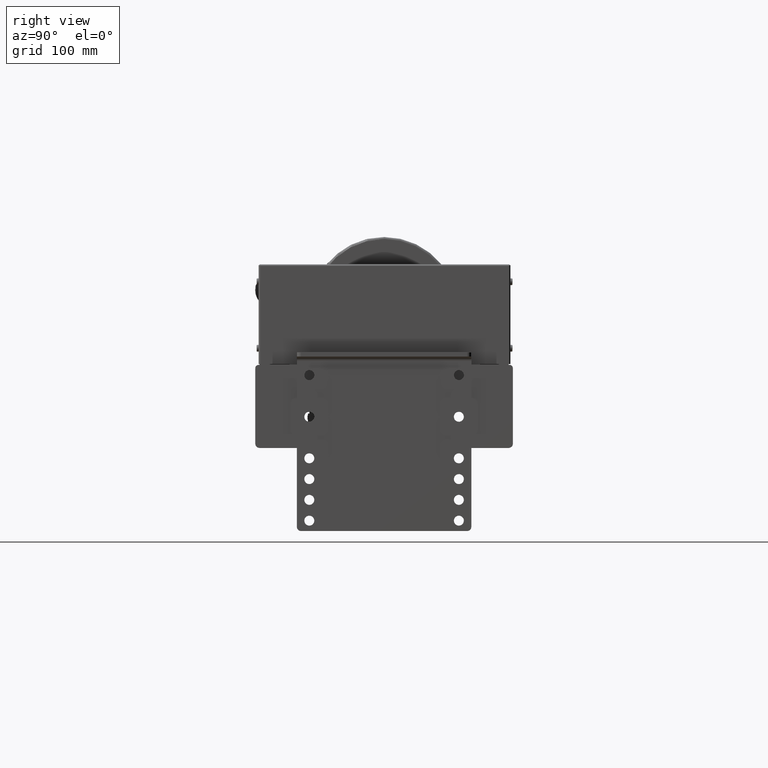
[diagram: clean part render]
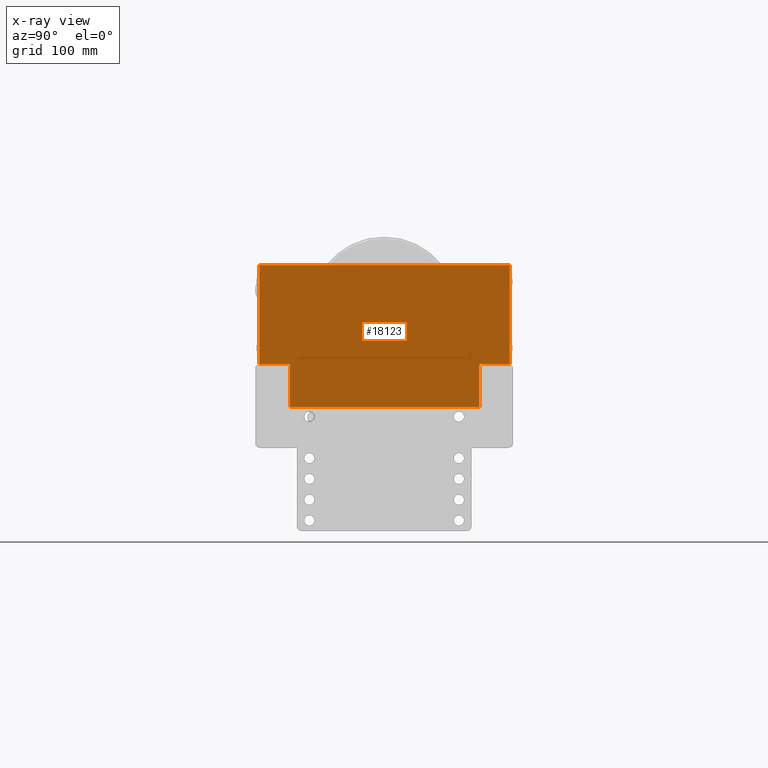
[diagram: x-ray — body ghosted, one internal face saturated and labeled with its STEP entity id]
A machine part, right view, then the same camera in x-ray: the body is ghosted and one INTERNAL B-rep face — a face not visible from any outside direction — is saturated and labeled: STEP entity #18123.
In plain terms, the highlighted planar face has unit normal (1, 0, -0).
Its self-contained STEP definition (entity closure, byte-faithful):
#16853=CARTESIAN_POINT('',(-54.0,-35.500000000000000,0.500000000000000));
#16854=VERTEX_POINT('',#16853);
#16861=CARTESIAN_POINT('',(-56.0,-33.500000000000000,0.500000000000000));
#16862=VERTEX_POINT('',#16861);
#16863=CARTESIAN_POINT('',(-56.0,-35.500000000000000,0.500000000000000));
#16864=DIRECTION('',(0.0,0.0,1.000000000000000));
#16865=DIRECTION('',(0.707106781186548,0.707106781186548,0.0));
#16866=AXIS2_PLACEMENT_3D('',#16863,#16864,#16865);
#16867=CIRCLE('',#16866,2.000000000000000);
#16868=EDGE_CURVE('',#16854,#16862,#16867,.T.);
#16918=CARTESIAN_POINT('',(-54.0,-85.499999999999943,0.500000000000000));
#16919=VERTEX_POINT('',#16918);
#16926=CARTESIAN_POINT('',(-54.0,-85.499999999999943,0.500000000000000));
#16927=DIRECTION('',(0.0,1.0,0.0));
#16928=VECTOR('',#16927,49.999999999999943);
#16929=LINE('',#16926,#16928);
#16930=EDGE_CURVE('',#16919,#16854,#16929,.T.);
#16983=CARTESIAN_POINT('',(-90.500000000000000,-33.500000000000000,0.500000000000000));
#16984=VERTEX_POINT('',#16983);
#16985=CARTESIAN_POINT('',(-56.0,-33.500000000000000,0.500000000000000));
#16986=DIRECTION('',(-1.0,0.0,0.0));
#16987=VECTOR('',#16986,34.500000000000000);
#16988=LINE('',#16985,#16987);
#16989=EDGE_CURVE('',#16862,#16984,#16988,.T.);
#17158=CARTESIAN_POINT('',(-90.500000000000000,85.499999999999886,0.500000000000000));
#17159=VERTEX_POINT('',#17158);
#17286=CARTESIAN_POINT('',(210.499999999999890,85.499999999999886,0.500000000000000));
#17287=VERTEX_POINT('',#17286);
#17437=CARTESIAN_POINT('',(210.500000000000000,-33.500000000000114,0.500000000000000));
#17438=VERTEX_POINT('',#17437);
#17445=CARTESIAN_POINT('',(176.0,-33.500000000000000,0.500000000000000));
#17446=VERTEX_POINT('',#17445);
#17447=CARTESIAN_POINT('',(210.500000000000000,-33.500000000000114,0.500000000000000));
#17448=DIRECTION('',(-1.0,0.0,0.0));
#17449=VECTOR('',#17448,34.500000000000000);
#17450=LINE('',#17447,#17449);
#17451=EDGE_CURVE('',#17438,#17446,#17450,.T.);
#17495=CARTESIAN_POINT('',(174.0,-35.500000000000114,0.500000000000000));
#17496=VERTEX_POINT('',#17495);
#17497=CARTESIAN_POINT('',(176.0,-35.500000000000114,0.500000000000000));
#17498=DIRECTION('',(0.0,0.0,1.000000000000000));
#17499=DIRECTION('',(-0.707106781186548,0.707106781186548,0.0));
#17500=AXIS2_PLACEMENT_3D('',#17497,#17498,#17499);
#17501=CIRCLE('',#17500,2.000000000000000);
#17502=EDGE_CURVE('',#17446,#17496,#17501,.T.);
#17592=CARTESIAN_POINT('',(174.0,-85.500000000000114,0.500000000000000));
#17593=VERTEX_POINT('',#17592);
#17600=CARTESIAN_POINT('',(174.0,-85.500000000000114,0.500000000000000));
#17601=DIRECTION('',(-1.0,0.0,0.0));
#17602=VECTOR('',#17601,228.0);
#17603=LINE('',#17600,#17602);
#17604=EDGE_CURVE('',#17593,#16919,#17603,.T.);
#17948=CARTESIAN_POINT('',(-90.500000000000000,85.499999999999886,0.500000000000000));
#17949=DIRECTION('',(1.0,0.0,0.0));
#17950=VECTOR('',#17949,300.999999999999890);
#17951=LINE('',#17948,#17950);
#17952=EDGE_CURVE('',#17159,#17287,#17951,.T.);
#18013=CARTESIAN_POINT('',(210.499999999999890,85.499999999999886,0.500000000000000));
#18014=DIRECTION('',(0.0,-1.0,0.0));
#18015=VECTOR('',#18014,119.0);
#18016=LINE('',#18013,#18015);
#18017=EDGE_CURVE('',#17287,#17438,#18016,.T.);
#18050=CARTESIAN_POINT('',(-90.500000000000000,-33.500000000000000,0.500000000000000));
#18051=DIRECTION('',(0.0,1.0,0.0));
#18052=VECTOR('',#18051,118.999999999999890);
#18053=LINE('',#18050,#18052);
#18054=EDGE_CURVE('',#16984,#17159,#18053,.T.);
#18092=CARTESIAN_POINT('',(174.0,-35.500000000000114,0.500000000000000));
#18093=DIRECTION('',(0.0,-1.0,0.0));
#18094=VECTOR('',#18093,50.0);
#18095=LINE('',#18092,#18094);
#18096=EDGE_CURVE('',#17496,#17593,#18095,.T.);
#18106=CARTESIAN_POINT('',(60.0,4.021186440677894,0.500000000000000));
#18107=DIRECTION('',(0.0,0.0,1.0));
#18108=DIRECTION('',(1.0,0.0,0.0));
#18109=AXIS2_PLACEMENT_3D('',#18106,#18107,#18108);
#18110=PLANE('',#18109);
#18111=ORIENTED_EDGE('',*,*,#18017,.F.);
#18112=ORIENTED_EDGE('',*,*,#17952,.F.);
#18113=ORIENTED_EDGE('',*,*,#18054,.F.);
#18114=ORIENTED_EDGE('',*,*,#16989,.F.);
#18115=ORIENTED_EDGE('',*,*,#16868,.F.);
#18116=ORIENTED_EDGE('',*,*,#16930,.F.);
#18117=ORIENTED_EDGE('',*,*,#17604,.F.);
#18118=ORIENTED_EDGE('',*,*,#18096,.F.);
#18119=ORIENTED_EDGE('',*,*,#17502,.F.);
#18120=ORIENTED_EDGE('',*,*,#17451,.F.);
#18121=EDGE_LOOP('',(#18111,#18112,#18113,#18114,#18115,#18116,#18117,#18118,#18119,#18120));
#18122=FACE_OUTER_BOUND('',#18121,.T.);
#18123=ADVANCED_FACE('',(#18122),#18110,.T.);